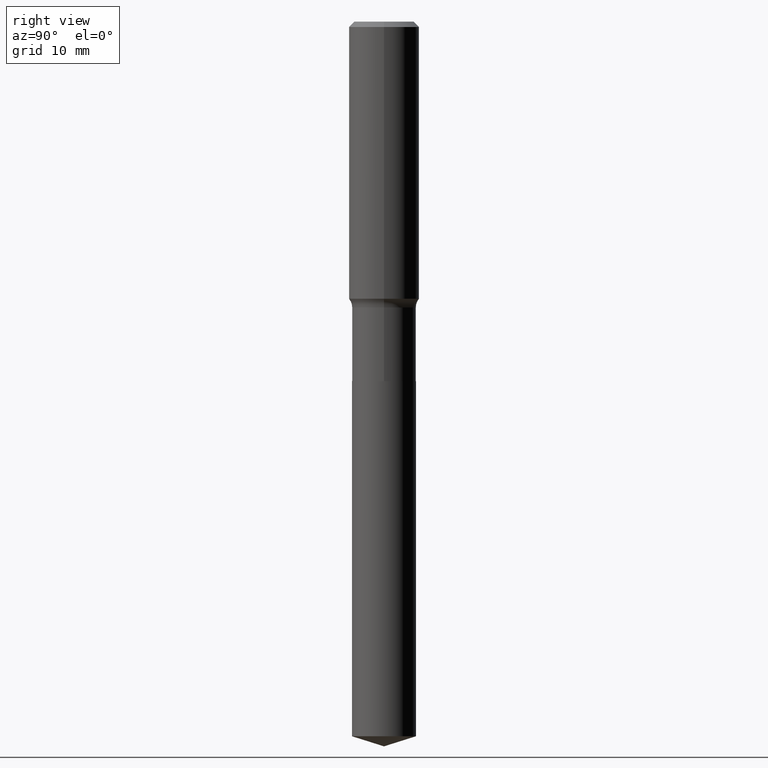
[diagram: clean part render]
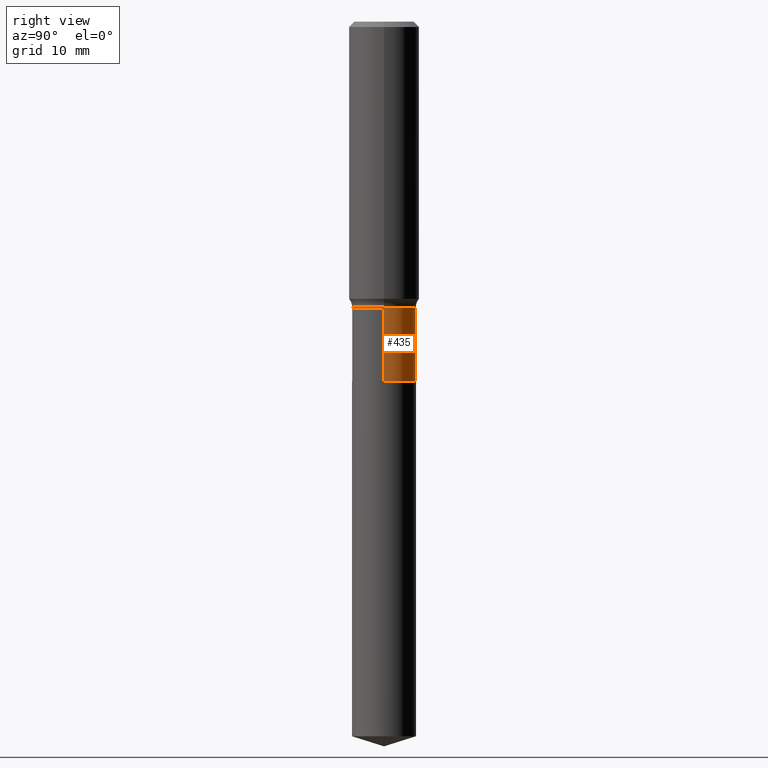
[diagram: same view with one face highlighted and labeled with its STEP entity id]
A machine part, right view. The second image highlights one B-rep face of the part: STEP entity #435.
In plain terms, the highlighted cylindrical surface (edge-blend (fillet) strip) has radius 4.5504 mm, axis along (-0, 0, 1).
Its self-contained STEP definition (entity closure, byte-faithful):
#21 = CIRCLE ( 'NONE', #85, 0.1791500000000000592 ) ;
#31 = CARTESIAN_POINT ( 'NONE',  ( 0.1791500000000000314, -1.250997763707495014E-15, 8.735670693838419573E-30 ) ) ;
#40 = VERTEX_POINT ( 'NONE', #351 ) ;
#50 = AXIS2_PLACEMENT_3D ( 'NONE', #101, #103, #376 ) ;
#53 = ORIENTED_EDGE ( 'NONE', *, *, #490, .T. ) ;
#70 = DIRECTION ( 'NONE',  ( 1.000000000000000000, -6.982962677686265922E-15, 0.000000000000000000 ) ) ;
#85 = AXIS2_PLACEMENT_3D ( 'NONE', #258, #409, #70 ) ;
#101 = CARTESIAN_POINT ( 'NONE',  ( 3.912260996134982219E-29, -5.585671845881265277E-15, -1.599800000000000333 ) ) ;
#103 = DIRECTION ( 'NONE',  ( -2.445468806185136597E-29, 3.491481338843145583E-15, 1.000000000000000000 ) ) ;
#112 = ORIENTED_EDGE ( 'NONE', *, *, #329, .T. ) ;
#150 = DIRECTION ( 'NONE',  ( -2.445468806185136877E-29, 3.491481338843145188E-15, 1.000000000000000000 ) ) ;
#152 = EDGE_LOOP ( 'NONE', ( #112, #53, #194, #492 ) ) ;
#155 = EDGE_CURVE ( 'NONE', #385, #306, #427, .T. ) ;
#169 = VECTOR ( 'NONE', #150, 39.37007874015748143 ) ;
#170 = EDGE_CURVE ( 'NONE', #40, #385, #484, .T. ) ;
#193 = LINE ( 'NONE', #491, #169 ) ;
#194 = ORIENTED_EDGE ( 'NONE', *, *, #155, .F. ) ;
#219 = DIRECTION ( 'NONE',  ( -2.445468806185136877E-29, 3.491481338843145188E-15, 1.000000000000000000 ) ) ;
#225 = CARTESIAN_POINT ( 'NONE',  ( -0.1791500000000000592, -5.031106820234021505E-15, -2.011299999999999866 ) ) ;
#232 = FACE_OUTER_BOUND ( 'NONE', #152, .T. ) ;
#246 = AXIS2_PLACEMENT_3D ( 'NONE', #453, #451, #272 ) ;
#258 = CARTESIAN_POINT ( 'NONE',  ( 4.918571409880165014E-29, -7.022416416815218724E-15, -2.011299999999999866 ) ) ;
#272 = DIRECTION ( 'NONE',  ( 1.000000000000000000, -6.982962677686267499E-15, 4.876176775795935232E-29 ) ) ;
#306 = VERTEX_POINT ( 'NONE', #325 ) ;
#325 = CARTESIAN_POINT ( 'NONE',  ( -0.1791499999999999759, -5.031106820234021505E-15, -1.599800000000000333 ) ) ;
#329 = EDGE_CURVE ( 'NONE', #40, #471, #21, .T. ) ;
#351 = CARTESIAN_POINT ( 'NONE',  ( 0.1791500000000000592, -8.273414180522713146E-15, -2.011299999999999866 ) ) ;
#360 = VECTOR ( 'NONE', #219, 39.37007874015748143 ) ;
#363 = CARTESIAN_POINT ( 'NONE',  ( 0.1791499999999999759, -6.836669609588759700E-15, -1.599800000000000333 ) ) ;
#376 = DIRECTION ( 'NONE',  ( 1.000000000000000000, -6.982962677686269866E-15, 0.000000000000000000 ) ) ;
#385 = VERTEX_POINT ( 'NONE', #363 ) ;
#409 = DIRECTION ( 'NONE',  ( -2.445468806185136597E-29, 3.491481338843145583E-15, 1.000000000000000000 ) ) ;
#415 = CYLINDRICAL_SURFACE ( 'NONE', #246, 0.1791500000000000314 ) ;
#427 = CIRCLE ( 'NONE', #50, 0.1791499999999999759 ) ;
#435 = ADVANCED_FACE ( 'NONE', ( #232 ), #415, .T. ) ;
#451 = DIRECTION ( 'NONE',  ( -2.445468806185136597E-29, 3.491481338843145583E-15, 1.000000000000000000 ) ) ;
#453 = CARTESIAN_POINT ( 'NONE',  ( 0.000000000000000000, 0.000000000000000000, 0.000000000000000000 ) ) ;
#471 = VERTEX_POINT ( 'NONE', #225 ) ;
#484 = LINE ( 'NONE', #31, #360 ) ;
#490 = EDGE_CURVE ( 'NONE', #471, #306, #193, .T. ) ;
#491 = CARTESIAN_POINT ( 'NONE',  ( -0.1791500000000000314, 1.272937311114219706E-15, -8.812272214191663486E-30 ) ) ;
#492 = ORIENTED_EDGE ( 'NONE', *, *, #170, .F. ) ;